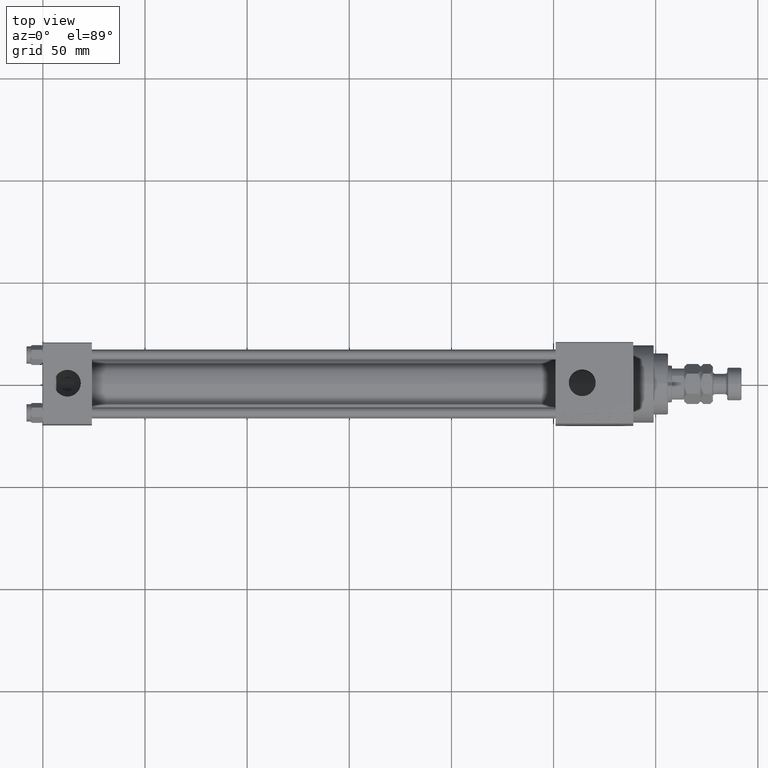
[diagram: clean part render]
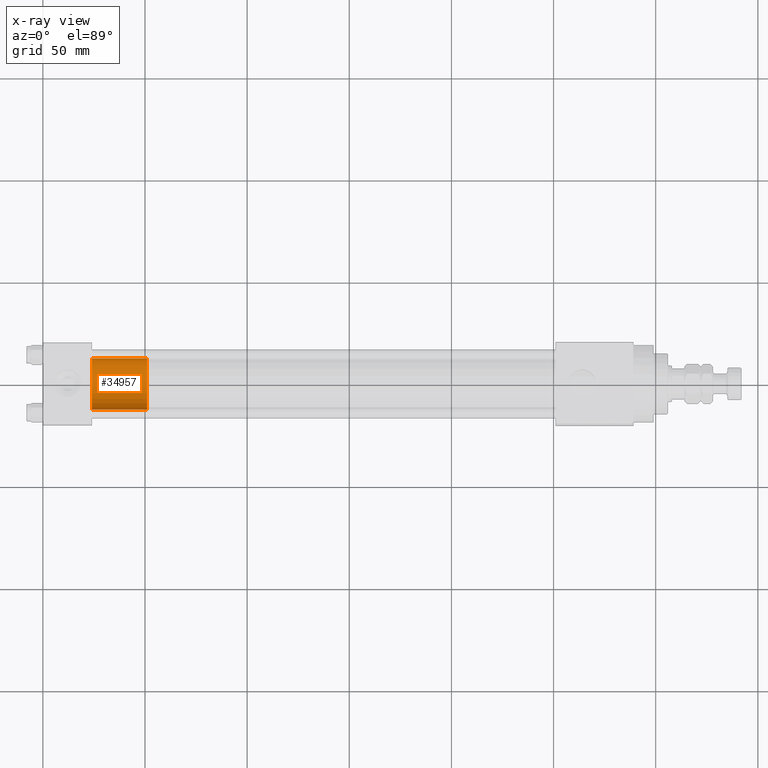
[diagram: x-ray — body ghosted, one internal face saturated and labeled with its STEP entity id]
A machine part, top view, then the same camera in x-ray: the body is ghosted and one INTERNAL B-rep face — a face not visible from any outside direction — is saturated and labeled: STEP entity #34957.
In plain terms, the highlighted cylindrical surface (edge-blend (fillet) strip) has radius 12.5 mm, axis along (-1, 0, 0).
Its self-contained STEP definition (entity closure, byte-faithful):
#134 = CIRCLE ( 'NONE', #18184, 12.50000000000000000 ) ;
#2271 = CARTESIAN_POINT ( 'NONE',  ( 12.50000000000000000, 1.530808498934191521E-15, 27.00000000000000000 ) ) ;
#2727 = CARTESIAN_POINT ( 'NONE',  ( -12.50000000000000000, 0.000000000000000000, 0.000000000000000000 ) ) ;
#3991 = CARTESIAN_POINT ( 'NONE',  ( 12.50000000000000000, 1.530808498934191521E-15, 27.00000000000000000 ) ) ;
#5241 = DIRECTION ( 'NONE',  ( 0.000000000000000000, 0.000000000000000000, 1.000000000000000000 ) ) ;
#6674 = DIRECTION ( 'NONE',  ( 1.000000000000000000, 0.000000000000000000, 0.000000000000000000 ) ) ;
#7630 = FACE_OUTER_BOUND ( 'NONE', #31503, .T. ) ;
#7878 = CYLINDRICAL_SURFACE ( 'NONE', #44775, 12.50000000000000000 ) ;
#9842 = ORIENTED_EDGE ( 'NONE', *, *, #35465, .F. ) ;
#11459 = AXIS2_PLACEMENT_3D ( 'NONE', #38506, #5241, #20245 ) ;
#11559 = VERTEX_POINT ( 'NONE', #2271 ) ;
#12604 = CARTESIAN_POINT ( 'NONE',  ( -12.50000000000000000, 0.000000000000000000, 27.00000000000000000 ) ) ;
#15804 = LINE ( 'NONE', #12604, #21173 ) ;
#17265 = DIRECTION ( 'NONE',  ( 0.000000000000000000, 0.000000000000000000, 1.000000000000000000 ) ) ;
#17744 = CIRCLE ( 'NONE', #11459, 12.50000000000000000 ) ;
#18184 = AXIS2_PLACEMENT_3D ( 'NONE', #25381, #17265, #6674 ) ;
#18795 = ORIENTED_EDGE ( 'NONE', *, *, #41580, .T. ) ;
#20245 = DIRECTION ( 'NONE',  ( 1.000000000000000000, 0.000000000000000000, 0.000000000000000000 ) ) ;
#21173 = VECTOR ( 'NONE', #31091, 1000.000000000000000 ) ;
#22879 = CARTESIAN_POINT ( 'NONE',  ( 0.000000000000000000, 0.000000000000000000, 27.00000000000000000 ) ) ;
#22956 = VECTOR ( 'NONE', #48153, 1000.000000000000000 ) ;
#23862 = EDGE_CURVE ( 'NONE', #47325, #40355, #17744, .T. ) ;
#25019 = CARTESIAN_POINT ( 'NONE',  ( 12.50000000000000000, 1.530808498934191521E-15, 0.000000000000000000 ) ) ;
#25381 = CARTESIAN_POINT ( 'NONE',  ( 0.000000000000000000, 0.000000000000000000, 27.00000000000000000 ) ) ;
#29441 = ORIENTED_EDGE ( 'NONE', *, *, #23862, .T. ) ;
#30538 = DIRECTION ( 'NONE',  ( -0.000000000000000000, -0.000000000000000000, -1.000000000000000000 ) ) ;
#31091 = DIRECTION ( 'NONE',  ( -0.000000000000000000, -0.000000000000000000, -1.000000000000000000 ) ) ;
#31503 = EDGE_LOOP ( 'NONE', ( #45955, #18795, #29441, #9842 ) ) ;
#32190 = CARTESIAN_POINT ( 'NONE',  ( -12.50000000000000000, 0.000000000000000000, 27.00000000000000000 ) ) ;
#33100 = LINE ( 'NONE', #3991, #22956 ) ;
#34957 = ADVANCED_FACE ( 'NONE', ( #7630 ), #7878, .T. ) ;
#35465 = EDGE_CURVE ( 'NONE', #47292, #40355, #15804, .T. ) ;
#38506 = CARTESIAN_POINT ( 'NONE',  ( 0.000000000000000000, 0.000000000000000000, 0.000000000000000000 ) ) ;
#40355 = VERTEX_POINT ( 'NONE', #2727 ) ;
#40406 = EDGE_CURVE ( 'NONE', #11559, #47292, #134, .T. ) ;
#41580 = EDGE_CURVE ( 'NONE', #11559, #47325, #33100, .T. ) ;
#44775 = AXIS2_PLACEMENT_3D ( 'NONE', #22879, #30538, #45590 ) ;
#45590 = DIRECTION ( 'NONE',  ( -1.000000000000000000, 0.000000000000000000, 0.000000000000000000 ) ) ;
#45955 = ORIENTED_EDGE ( 'NONE', *, *, #40406, .F. ) ;
#47292 = VERTEX_POINT ( 'NONE', #32190 ) ;
#47325 = VERTEX_POINT ( 'NONE', #25019 ) ;
#48153 = DIRECTION ( 'NONE',  ( -0.000000000000000000, -0.000000000000000000, -1.000000000000000000 ) ) ;